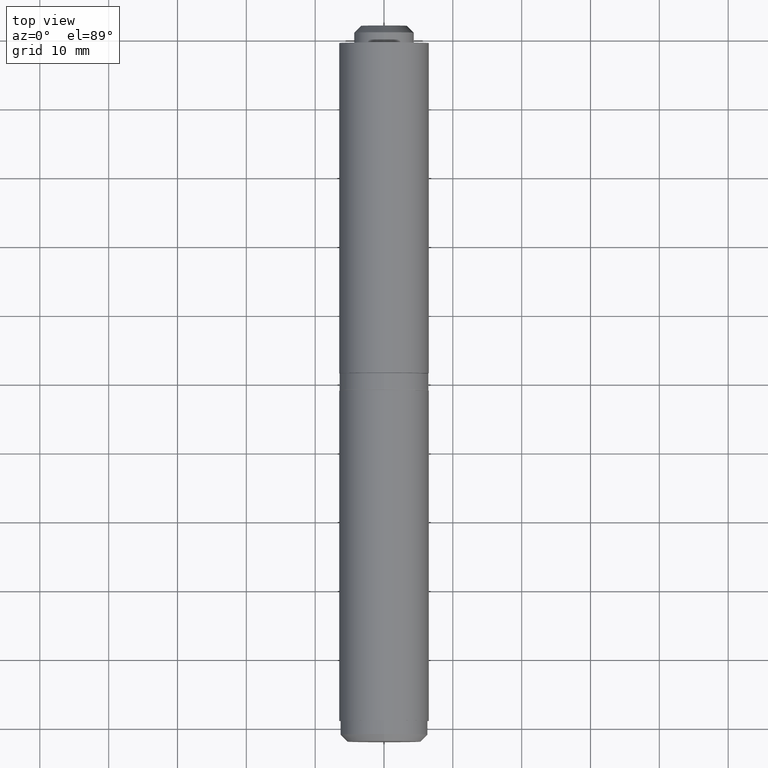
[diagram: clean part render]
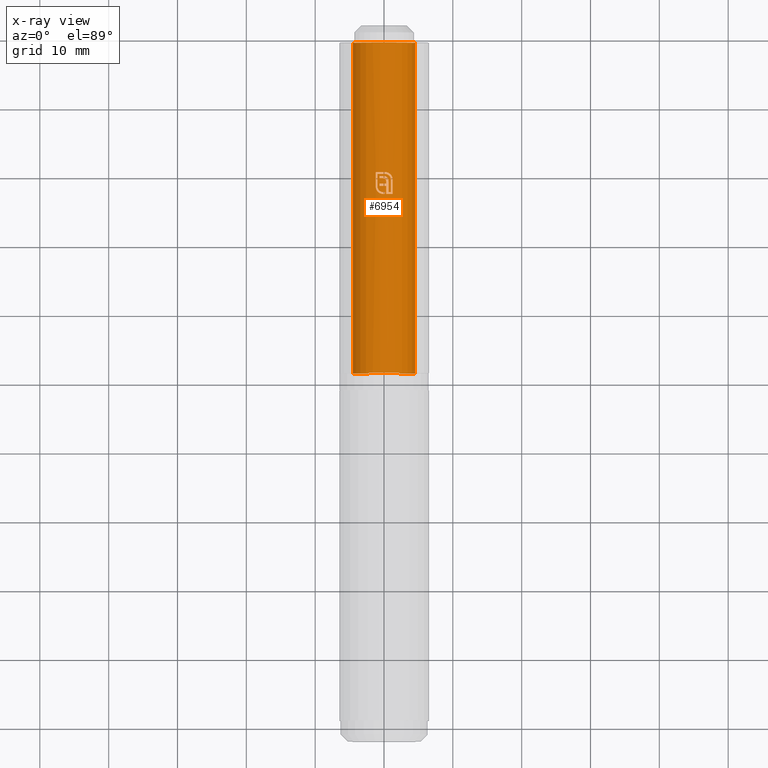
[diagram: x-ray — body ghosted, one internal face saturated and labeled with its STEP entity id]
A machine part, top view, then the same camera in x-ray: the body is ghosted and one INTERNAL B-rep face — a face not visible from any outside direction — is saturated and labeled: STEP entity #6954.
In plain terms, the highlighted cylindrical surface (edge-blend (fillet) strip) has radius 4.5 mm, axis along (-0, -1, -0).
Its self-contained STEP definition (entity closure, byte-faithful):
#5 = CARTESIAN_POINT ( 'NONE',  ( -0.7676687614680792748, 2.209439501032382847, 4.434181471504368588 ) ) ;
#31 = CARTESIAN_POINT ( 'NONE',  ( -0.9480029924582433765, 2.958145984967091469, 4.399022757154508412 ) ) ;
#48 = VERTEX_POINT ( 'NONE', #8719 ) ;
#53 = CARTESIAN_POINT ( 'NONE',  ( 0.000000000000000000, 4.609445667457190865, 0.000000000000000000 ) ) ;
#87 = CARTESIAN_POINT ( 'NONE',  ( -0.8440332804270705980, 2.653375887905594421, 4.420244564810567489 ) ) ;
#122 = EDGE_CURVE ( 'NONE', #5552, #1242, #10960, .T. ) ;
#205 = ORIENTED_EDGE ( 'NONE', *, *, #11868, .F. ) ;
#211 = CARTESIAN_POINT ( 'NONE',  ( 2.274999999999998579, 23.99999999999999289, -3.882573244640724397 ) ) ;
#258 = VECTOR ( 'NONE', #12909, 1000.000000000000000 ) ;
#315 = EDGE_CURVE ( 'NONE', #7555, #2409, #9040, .T. ) ;
#388 = CARTESIAN_POINT ( 'NONE',  ( 1.253355793030608067, 23.99999999999999289, 4.321932352093980079 ) ) ;
#403 = DIRECTION ( 'NONE',  ( 0.000000000000000000, 0.000000000000000000, 1.000000000000000000 ) ) ;
#420 = VECTOR ( 'NONE', #12903, 1000.000000000000000 ) ;
#526 = ORIENTED_EDGE ( 'NONE', *, *, #315, .F. ) ;
#550 = DIRECTION ( 'NONE',  ( 1.546769729245012522E-14, -1.000000000000000000, -0.000000000000000000 ) ) ;
#558 = ORIENTED_EDGE ( 'NONE', *, *, #4746, .F. ) ;
#596 = VERTEX_POINT ( 'NONE', #774 ) ;
#636 = CARTESIAN_POINT ( 'NONE',  ( 0.6305904172171344912, 5.051474659323712757, 4.455800423586352643 ) ) ;
#656 = CARTESIAN_POINT ( 'NONE',  ( 0.3255386204234211878, 3.755468615853324366, 4.488209510106766054 ) ) ;
#704 = CARTESIAN_POINT ( 'NONE',  ( 0.3116960629634016322, 3.907502668029321224, 4.489195601796993174 ) ) ;
#718 = CARTESIAN_POINT ( 'NONE',  ( 0.6310656656755744276, 4.037560485615693473, 4.455572912976717426 ) ) ;
#757 = LINE ( 'NONE', #9889, #258 ) ;
#764 = LINE ( 'NONE', #2005, #5172 ) ;
#768 = EDGE_CURVE ( 'NONE', #1242, #8072, #992, .T. ) ;
#774 = CARTESIAN_POINT ( 'NONE',  ( 1.253355793030608734, 2.000000000000001776, 4.321932352093980967 ) ) ;
#795 = CARTESIAN_POINT ( 'NONE',  ( 0.3201257427930311317, 3.850961675367383208, 4.488599728256452259 ) ) ;
#807 = DIRECTION ( 'NONE',  ( 0.000000000000000000, 1.000000000000000000, 0.000000000000000000 ) ) ;
#836 = EDGE_CURVE ( 'NONE', #10081, #7914, #9406, .T. ) ;
#841 = EDGE_CURVE ( 'NONE', #9863, #5499, #5506, .T. ) ;
#850 = EDGE_CURVE ( 'NONE', #7146, #2755, #10706, .T. ) ;
#855 = CARTESIAN_POINT ( 'NONE',  ( 1.006151909671600286, 4.080365148268018771, 4.386075504897765320 ) ) ;
#866 = ORIENTED_EDGE ( 'NONE', *, *, #2422, .F. ) ;
#916 = CARTESIAN_POINT ( 'NONE',  ( -0.8380926976776720272, 2.264564130130942043, 4.421411684028747402 ) ) ;
#924 = CARTESIAN_POINT ( 'NONE',  ( -1.154465025443730752, 2.750520263700859225, 4.349408601893741455 ) ) ;
#946 = VECTOR ( 'NONE', #9881, 1000.000000000000000 ) ;
#975 = CARTESIAN_POINT ( 'NONE',  ( 0.3255386204234210767, 23.99999999999999289, 4.488209510106765165 ) ) ;
#992 = LINE ( 'NONE', #13045, #1343 ) ;
#1009 = CARTESIAN_POINT ( 'NONE',  ( -0.9327200458989125531, 2.359368556873211009, 4.402389414372885668 ) ) ;
#1081 = VERTEX_POINT ( 'NONE', #2635 ) ;
#1086 = CARTESIAN_POINT ( 'NONE',  ( 0.01921422108199707240, 4.587329256537598710, 4.500083828489570337 ) ) ;
#1099 = CARTESIAN_POINT ( 'NONE',  ( 0.008756587164761854905, 4.259605371250122730, 4.500028330865335491 ) ) ;
#1147 = DIRECTION ( 'NONE',  ( 0.000000000000000000, 1.000000000000000000, 0.000000000000000000 ) ) ;
#1172 = CARTESIAN_POINT ( 'NONE',  ( -0.6279620725327546005, 4.288401663094826510, 4.455969438344517641 ) ) ;
#1189 = CARTESIAN_POINT ( 'NONE',  ( -0.4282727018193733803, 2.043661984593277303, 4.479573918675338717 ) ) ;
#1195 = CARTESIAN_POINT ( 'NONE',  ( 0.1868476105388863495, 4.149710653210285649, 4.496119212213562477 ) ) ;
#1207 = CARTESIAN_POINT ( 'NONE',  ( 0.1829950824865379799, 5.146873330759742515, 4.496277660441549529 ) ) ;
#1242 = VERTEX_POINT ( 'NONE', #8190 ) ;
#1273 = CARTESIAN_POINT ( 'NONE',  ( -0.3797257206509644378, 2.029863875049589428, 4.484215285726678601 ) ) ;
#1343 = VECTOR ( 'NONE', #7877, 1000.000000000000000 ) ;
#1353 = AXIS2_PLACEMENT_3D ( 'NONE', #10247, #5906, #3641 ) ;
#1398 = CARTESIAN_POINT ( 'NONE',  ( 0.2908658679522872492, 3.980841506915688832, 4.490589832846055174 ) ) ;
#1466 = CARTESIAN_POINT ( 'NONE',  ( -0.1984051946959321522, 4.288401663094819405, 4.495624025507211741 ) ) ;
#1474 = LINE ( 'NONE', #388, #3158 ) ;
#1498 = EDGE_CURVE ( 'NONE', #11568, #8072, #11773, .T. ) ;
#1662 = CARTESIAN_POINT ( 'NONE',  ( 0.3216860923710728737, 2.247203883359007115, 4.488487279471228497 ) ) ;
#1771 = ORIENTED_EDGE ( 'NONE', *, *, #2205, .F. ) ;
#1775 = CARTESIAN_POINT ( 'NONE',  ( -2.274999999999999023, -24.00000000000000000, -3.882573244640724397 ) ) ;
#1800 = CIRCLE ( 'NONE', #5297, 4.500000000000000000 ) ;
#1808 = CARTESIAN_POINT ( 'NONE',  ( -0.3432038137734825800, 2.270870091671090663, 4.487208185411386552 ) ) ;
#1816 = CARTESIAN_POINT ( 'NONE',  ( 0.5132577123878178105, 4.301117604165036745, 4.470728646581288324 ) ) ;
#1895 = CARTESIAN_POINT ( 'NONE',  ( 1.004767296783291908, 4.134389496864537605, 4.386393130734386858 ) ) ;
#1930 = DIRECTION ( 'NONE',  ( 0.000000000000000000, 0.000000000000000000, 1.000000000000000000 ) ) ;
#1938 = CIRCLE ( 'NONE', #12093, 4.500000000000000000 ) ;
#2005 = CARTESIAN_POINT ( 'NONE',  ( -0.6279620725326500175, 24.00000000000000711, 4.455969438344531852 ) ) ;
#2052 = CARTESIAN_POINT ( 'NONE',  ( -1.061371478421925474, 2.541922279363645565, 4.373041342680452637 ) ) ;
#2076 = CARTESIAN_POINT ( 'NONE',  ( -0.1172518018259316452, 4.605904330165980554, 4.498990910224363482 ) ) ;
#2087 = VERTEX_POINT ( 'NONE', #13811 ) ;
#2091 = CARTESIAN_POINT ( 'NONE',  ( -0.9617301877104678098, 2.393275440488541239, 4.396112353924896965 ) ) ;
#2118 = CARTESIAN_POINT ( 'NONE',  ( 0.6848356066615164384, 4.730622471763144432, 4.447812430624699331 ) ) ;
#2120 = EDGE_CURVE ( 'NONE', #2855, #13465, #12956, .T. ) ;
#2141 = CARTESIAN_POINT ( 'NONE',  ( 0.3216860923710727072, 23.99999999999999289, 4.488487279471227609 ) ) ;
#2145 = CARTESIAN_POINT ( 'NONE',  ( 0.7634426423736646594, 4.656960180102795555, 4.434766660356045165 ) ) ;
#2155 = LINE ( 'NONE', #4251, #13436 ) ;
#2162 = EDGE_CURVE ( 'NONE', #10380, #2087, #2500, .T. ) ;
#2163 = CARTESIAN_POINT ( 'NONE',  ( 0.000000000000000000, 4.288401663094805194, 0.000000000000000000 ) ) ;
#2170 = CARTESIAN_POINT ( 'NONE',  ( 0.6684136170823562484, 23.99999999999999289, 4.450081261785999054 ) ) ;
#2178 = DIRECTION ( 'NONE',  ( 0.000000000000000000, 0.000000000000000000, -1.000000000000000000 ) ) ;
#2197 = ORIENTED_EDGE ( 'NONE', *, *, #2361, .F. ) ;
#2205 = EDGE_CURVE ( 'NONE', #8571, #7451, #11601, .T. ) ;
#2224 = CARTESIAN_POINT ( 'NONE',  ( -0.06557446798067144422, 4.278026249048912710, 4.499562136684323477 ) ) ;
#2229 = EDGE_LOOP ( 'NONE', ( #10838, #13818, #13172, #12845 ) ) ;
#2243 = ORIENTED_EDGE ( 'NONE', *, *, #9416, .F. ) ;
#2244 = CARTESIAN_POINT ( 'NONE',  ( 0.3255386204234211878, 3.755468615853324366, 4.488209510106766054 ) ) ;
#2250 = ORIENTED_EDGE ( 'NONE', *, *, #841, .F. ) ;
#2263 = ORIENTED_EDGE ( 'NONE', *, *, #5079, .F. ) ;
#2281 = DIRECTION ( 'NONE',  ( -0.000000000000000000, -1.000000000000000000, -0.000000000000000000 ) ) ;
#2284 = LINE ( 'NONE', #6212, #420 ) ;
#2301 = CARTESIAN_POINT ( 'NONE',  ( -0.4282727018193733803, 2.043661984593277303, 4.479573918675338717 ) ) ;
#2328 = CARTESIAN_POINT ( 'NONE',  ( -0.1290596897536646637, 2.000000000000001776, 4.498148907770914917 ) ) ;
#2332 = VECTOR ( 'NONE', #11881, 1000.000000000000000 ) ;
#2334 = ORIENTED_EDGE ( 'NONE', *, *, #10687, .F. ) ;
#2361 = EDGE_CURVE ( 'NONE', #5825, #3746, #2155, .T. ) ;
#2369 = DIRECTION ( 'NONE',  ( 1.000000000000000000, 3.681468710128557348E-14, 2.398081733190338127E-14 ) ) ;
#2376 = CARTESIAN_POINT ( 'NONE',  ( -0.04667139073047157916, 4.274639003351478728, 4.499796422943714624 ) ) ;
#2384 = CARTESIAN_POINT ( 'NONE',  ( 1.092833790849434550, 4.639623803867232610, 4.365285134510418885 ) ) ;
#2395 = EDGE_CURVE ( 'NONE', #12510, #13319, #6929, .T. ) ;
#2409 = VERTEX_POINT ( 'NONE', #11971 ) ;
#2422 = EDGE_CURVE ( 'NONE', #7451, #5267, #10584, .T. ) ;
#2425 = CIRCLE ( 'NONE', #9933, 4.500000000000000000 ) ;
#2438 = FACE_BOUND ( 'NONE', #13018, .T. ) ;
#2463 = CARTESIAN_POINT ( 'NONE',  ( 0.2572232564420123269, 4.513241621450033492, 4.492904352146033453 ) ) ;
#2500 = CIRCLE ( 'NONE', #8205, 4.500000000000000000 ) ;
#2514 = B_SPLINE_CURVE_WITH_KNOTS ( 'NONE', 3,
 ( #4297, #8882, #3188, #6672, #11970, #4379, #10991, #8679, #5559, #6627, #5464, #9949, #3336 ),
 .UNSPECIFIED., .F., .F.,
 ( 4, 3, 3, 3, 4 ),
 ( 0.000000000000000000, 7.485420885651228361E-05, 0.0001498035769466081663, 0.0002243807362915702650, 0.0002993900755846142696 ),
 .UNSPECIFIED. ) ;
#2539 = CARTESIAN_POINT ( 'NONE',  ( 0.000000000000000000, 2.000000000000022649, 0.000000000000000000 ) ) ;
#2543 = VERTEX_POINT ( 'NONE', #1207 ) ;
#2557 = EDGE_CURVE ( 'NONE', #7286, #6962, #11960, .T. ) ;
#2582 = ORIENTED_EDGE ( 'NONE', *, *, #3115, .F. ) ;
#2586 = EDGE_CURVE ( 'NONE', #6432, #10380, #14106, .T. ) ;
#2635 = CARTESIAN_POINT ( 'NONE',  ( -0.6279620725327548225, 4.609445667457169549, 4.455969438344532740 ) ) ;
#2686 = AXIS2_PLACEMENT_3D ( 'NONE', #2163, #12979, #7615 ) ;
#2722 = ORIENTED_EDGE ( 'NONE', *, *, #5046, .F. ) ;
#2755 = VERTEX_POINT ( 'NONE', #11073 ) ;
#2831 = VECTOR ( 'NONE', #9368, 1000.000000000000000 ) ;
#2848 = CARTESIAN_POINT ( 'NONE',  ( -0.1831947908793095936, 2.248689988033408582, 4.496595677875841801 ) ) ;
#2855 = VERTEX_POINT ( 'NONE', #9242 ) ;
#2859 = CARTESIAN_POINT ( 'NONE',  ( 0.7114335136669640569, 5.008182320875207871, 4.443406616058390490 ) ) ;
#2870 = CARTESIAN_POINT ( 'NONE',  ( 0.3253410152290591717, 3.774597260251678854, 4.488223842798280572 ) ) ;
#2973 = LINE ( 'NONE', #2170, #946 ) ;
#2982 = CARTESIAN_POINT ( 'NONE',  ( 0.7634426423736646594, 4.656960180102795555, 4.434766660356045165 ) ) ;
#3011 = DIRECTION ( 'NONE',  ( 0.000000000000000000, -1.000000000000000000, -0.000000000000000000 ) ) ;
#3051 = CARTESIAN_POINT ( 'NONE',  ( -1.197290163826928877, 2.974848710803206675, 4.337801932246638792 ) ) ;
#3092 = AXIS2_PLACEMENT_3D ( 'NONE', #2539, #13429, #6968 ) ;
#3095 = ORIENTED_EDGE ( 'NONE', *, *, #10018, .F. ) ;
#3100 = CARTESIAN_POINT ( 'NONE',  ( -1.177700010895813554, 2.839431931887263172, 4.343174802553550151 ) ) ;
#3115 = EDGE_CURVE ( 'NONE', #9455, #9450, #3222, .T. ) ;
#3120 = CARTESIAN_POINT ( 'NONE',  ( 0.7634426423736646594, 4.656960180102795555, 4.434766660356045165 ) ) ;
#3145 = CARTESIAN_POINT ( 'NONE',  ( -1.140575606751490945, 2.706870968456518423, 4.353094183687113983 ) ) ;
#3158 = VECTOR ( 'NONE', #9207, 1000.000000000000000 ) ;
#3165 = CARTESIAN_POINT ( 'NONE',  ( 0.5489883476184528321, 4.818180161065377831, 4.466661610300540097 ) ) ;
#3188 = CARTESIAN_POINT ( 'NONE',  ( 1.223420605011807272, 4.327234442083224941, 4.330505247519436551 ) ) ;
#3210 = CARTESIAN_POINT ( 'NONE',  ( 0.9571029960879618992, 4.816941855496957636, 4.397161727897488603 ) ) ;
#3222 = B_SPLINE_CURVE_WITH_KNOTS ( 'NONE', 3,
 ( #9729, #4200, #5282, #3390, #1273, #2301 ),
 .UNSPECIFIED., .F., .F.,
 ( 4, 2, 4 ),
 ( 2.710505431213764696E-20, 0.0001521874723932654537, 0.0003043749447865308532 ),
 .UNSPECIFIED. ) ;
#3223 = VERTEX_POINT ( 'NONE', #7002 ) ;
#3236 = VERTEX_POINT ( 'NONE', #5893 ) ;
#3275 = CARTESIAN_POINT ( 'NONE',  ( -1.061371478421925474, 2.541922279363645565, 4.373041342680452637 ) ) ;
#3336 = CARTESIAN_POINT ( 'NONE',  ( 1.253355793030608734, 4.080365148268018771, 4.321932352093980967 ) ) ;
#3351 = LINE ( 'NONE', #11094, #7437 ) ;
#3390 = CARTESIAN_POINT ( 'NONE',  ( -0.3306907673371394796, 2.017991626808814498, 4.488113819902606494 ) ) ;
#3419 = ORIENTED_EDGE ( 'NONE', *, *, #2120, .F. ) ;
#3420 = B_SPLINE_CURVE_WITH_KNOTS ( 'NONE', 3,
 ( #10052, #11007, #31, #4393, #6690, #7812, #87, #7705, #8951, #11145 ),
 .UNSPECIFIED., .F., .F.,
 ( 4, 2, 2, 2, 4 ),
 ( 4.336808689942166996E-19, 0.0001625132019157780232, 0.0003250264038315556128, 0.0004875396057473332023, 0.0006500528076631107918 ),
 .UNSPECIFIED. ) ;
#3428 = CARTESIAN_POINT ( 'NONE',  ( 2.274999999999998579, -24.00000000000000000, -3.882573244640724397 ) ) ;
#3472 = VERTEX_POINT ( 'NONE', #5068 ) ;
#3486 = DIRECTION ( 'NONE',  ( 0.000000000000000000, 1.000000000000000000, 0.000000000000000000 ) ) ;
#3515 = B_SPLINE_CURVE_WITH_KNOTS ( 'NONE', 3,
 ( #6559, #1099, #12249, #8821, #2376, #2224, #8761, #9937, #5549, #4467 ),
 .UNSPECIFIED., .F., .F.,
 ( 4, 3, 3, 4 ),
 ( 0.000000000000000000, 5.740821187204795837E-05, 0.0001149024722405065925, 0.0002293725351324100764 ),
 .UNSPECIFIED. ) ;
#3527 = CARTESIAN_POINT ( 'NONE',  ( 0.4132276602549038724, 5.124500268190222307, 4.481212597768475803 ) ) ;
#3551 = CARTESIAN_POINT ( 'NONE',  ( 0.4385461099589678668, 4.384072776394798865, 4.478579831759154750 ) ) ;
#3616 = CARTESIAN_POINT ( 'NONE',  ( 0.2098494917111835001, 4.125546971689824538, 4.495163310839045856 ) ) ;
#3624 = ORIENTED_EDGE ( 'NONE', *, *, #8837, .F. ) ;
#3629 = CARTESIAN_POINT ( 'NONE',  ( 0.000000000000000000, -24.00000000000000000, 0.000000000000000000 ) ) ;
#3641 = DIRECTION ( 'NONE',  ( 7.105427357601001859E-15, 0.000000000000000000, -1.000000000000000000 ) ) ;
#3648 = CARTESIAN_POINT ( 'NONE',  ( 0.2051382027816461284, 4.534405695958179550, 4.495634176080965716 ) ) ;
#3664 = LINE ( 'NONE', #211, #13245 ) ;
#3746 = VERTEX_POINT ( 'NONE', #12884 ) ;
#3801 = CIRCLE ( 'NONE', #12592, 4.500000000000000000 ) ;
#3860 = LINE ( 'NONE', #12680, #2831 ) ;
#3906 = CARTESIAN_POINT ( 'NONE',  ( 0.4773655694681908646, 4.344023402496453024, 4.474778599315388128 ) ) ;
#4010 = DIRECTION ( 'NONE',  ( -1.000000000000000000, -1.541976423090495160E-14, -5.329070518200749816E-15 ) ) ;
#4021 = CARTESIAN_POINT ( 'NONE',  ( 0.2908658679522872492, 3.980841506915688832, 4.490589832846055174 ) ) ;
#4066 = CARTESIAN_POINT ( 'NONE',  ( 0.3238685927166647938, 3.812833195676379461, 4.488330328156752813 ) ) ;
#4080 = ORIENTED_EDGE ( 'NONE', *, *, #7884, .F. ) ;
#4088 = CARTESIAN_POINT ( 'NONE',  ( -1.198679167774359788, 3.020678023088193331, 4.337415164914441235 ) ) ;
#4120 = VERTEX_POINT ( 'NONE', #7820 ) ;
#4160 = CARTESIAN_POINT ( 'NONE',  ( 0.2915277810603660869, 4.894852510010306190, 4.490864400373939525 ) ) ;
#4200 = CARTESIAN_POINT ( 'NONE',  ( -0.1797696817940542813, 2.000834830801292874, 4.496693950192960365 ) ) ;
#4241 = CARTESIAN_POINT ( 'NONE',  ( -1.200062488306460340, 3.066508182491718859, 4.337032398329496274 ) ) ;
#4251 = CARTESIAN_POINT ( 'NONE',  ( -1.200062488306459896, 23.99999999999999289, 4.337032398329495386 ) ) ;
#4271 = CARTESIAN_POINT ( 'NONE',  ( 1.195964771809202354, 4.421669129376579299, 4.338187574659050583 ) ) ;
#4285 = CARTESIAN_POINT ( 'NONE',  ( -1.014404538876975570, 2.465687369792450845, 4.384257316101612290 ) ) ;
#4297 = CARTESIAN_POINT ( 'NONE',  ( 1.209693808437329210, 4.375083544272656333, 4.334355879462182592 ) ) ;
#4299 = ORIENTED_EDGE ( 'NONE', *, *, #10528, .F. ) ;
#4318 = CARTESIAN_POINT ( 'NONE',  ( 0.4505225510019807977, 4.859727596995678134, 4.477664969355360292 ) ) ;
#4379 = CARTESIAN_POINT ( 'NONE',  ( 1.238891985862425660, 4.254064126797340251, 4.326102282330223758 ) ) ;
#4388 = EDGE_CURVE ( 'NONE', #2543, #2855, #13826, .T. ) ;
#4393 = CARTESIAN_POINT ( 'NONE',  ( -0.9274042958727106711, 2.851325851457635174, 4.403411423393214896 ) ) ;
#4394 = EDGE_CURVE ( 'NONE', #14118, #3223, #3860, .T. ) ;
#4405 = CARTESIAN_POINT ( 'NONE',  ( 1.092833790849434550, 4.639623803867232610, 4.365285134510418885 ) ) ;
#4448 = ORIENTED_EDGE ( 'NONE', *, *, #2395, .F. ) ;
#4467 = CARTESIAN_POINT ( 'NONE',  ( -0.1984051946959321522, 4.288401663094819405, 4.495624025507211741 ) ) ;
#4527 = DIRECTION ( 'NONE',  ( -0.000000000000000000, -1.000000000000000000, -0.000000000000000000 ) ) ;
#4575 = EDGE_CURVE ( 'NONE', #3746, #2543, #1800, .T. ) ;
#4585 = CARTESIAN_POINT ( 'NONE',  ( -0.6515467889687115433, 2.135370303425541572, 4.452777899566520148 ) ) ;
#4694 = CARTESIAN_POINT ( 'NONE',  ( 0.1868476105388863495, 4.149710653210285649, 4.496119212213562477 ) ) ;
#4729 = CARTESIAN_POINT ( 'NONE',  ( 0.3540213200035531860, 4.456681711822390035, 4.486314994087052810 ) ) ;
#4746 = EDGE_CURVE ( 'NONE', #3236, #596, #1474, .T. ) ;
#4926 = CARTESIAN_POINT ( 'NONE',  ( -0.4942704737478704757, 2.326839151742363221, 4.473048484920414403 ) ) ;
#5046 = EDGE_CURVE ( 'NONE', #13465, #9022, #13585, .T. ) ;
#5055 = CARTESIAN_POINT ( 'NONE',  ( 0.3026826819355654674, 3.944711817155348577, 4.489824430530637400 ) ) ;
#5060 = B_SPLINE_CURVE_WITH_KNOTS ( 'NONE', 3,
 ( #2052, #13886, #9761, #3145, #924, #3100, #11829, #3051, #4088, #5183 ),
 .UNSPECIFIED., .F., .F.,
 ( 4, 2, 2, 2, 4 ),
 ( 0.000000000000000000, 0.0001380313922913706595, 0.0002760627845827413190, 0.0004140941768741119786, 0.0005521255691654826381 ),
 .UNSPECIFIED. ) ;
#5068 = CARTESIAN_POINT ( 'NONE',  ( 1.006151909671600286, 4.080365148268018771, 4.386075504897765320 ) ) ;
#5079 = EDGE_CURVE ( 'NONE', #6125, #7864, #2973, .T. ) ;
#5139 = AXIS2_PLACEMENT_3D ( 'NONE', #7421, #8555, #11856 ) ;
#5172 = VECTOR ( 'NONE', #6379, 1000.000000000000000 ) ;
#5183 = CARTESIAN_POINT ( 'NONE',  ( -1.200062488306460340, 3.066508182491718859, 4.337032398329496274 ) ) ;
#5225 = CARTESIAN_POINT ( 'NONE',  ( -0.8707808956538588552, 2.294914004465761881, 4.415058308965849498 ) ) ;
#5267 = VERTEX_POINT ( 'NONE', #2244 ) ;
#5282 = CARTESIAN_POINT ( 'NONE',  ( -0.2304462672031439563, 2.003458778211022917, 4.494376103747318218 ) ) ;
#5297 = AXIS2_PLACEMENT_3D ( 'NONE', #13138, #8632, #6422 ) ;
#5352 = CARTESIAN_POINT ( 'NONE',  ( 0.08625138762525033642, 4.572649476639226940, 4.499298206149249246 ) ) ;
#5372 = ORIENTED_EDGE ( 'NONE', *, *, #11754, .F. ) ;
#5394 = CARTESIAN_POINT ( 'NONE',  ( 0.2374244021070018307, 4.898341542803921200, 4.494062428512873630 ) ) ;
#5402 = ORIENTED_EDGE ( 'NONE', *, *, #10664, .F. ) ;
#5405 = ORIENTED_EDGE ( 'NONE', *, *, #836, .F. ) ;
#5408 = EDGE_CURVE ( 'NONE', #5552, #11568, #3664, .T. ) ;
#5455 = VERTEX_POINT ( 'NONE', #11095 ) ;
#5464 = CARTESIAN_POINT ( 'NONE',  ( 1.252502541033962080, 4.130387284028055106, 4.322180066990496172 ) ) ;
#5496 = CARTESIAN_POINT ( 'NONE',  ( 1.209693808437329210, 4.375083544272656333, 4.334355879462182592 ) ) ;
#5499 = VERTEX_POINT ( 'NONE', #13388 ) ;
#5506 = B_SPLINE_CURVE_WITH_KNOTS ( 'NONE', 3,
 ( #11946, #8806, #2076, #14001, #1086, #5352, #8703, #9786 ),
 .UNSPECIFIED., .F., .F.,
 ( 4, 2, 2, 4 ),
 ( 1.084202172485503832E-19, 0.0002066500901444883723, 0.0003099751352167327075, 0.0004133001802889770156 ),
 .UNSPECIFIED. ) ;
#5549 = CARTESIAN_POINT ( 'NONE',  ( -0.1603841129124185250, 4.287855708152656931, 4.497302008383671001 ) ) ;
#5552 = VERTEX_POINT ( 'NONE', #5768 ) ;
#5559 = CARTESIAN_POINT ( 'NONE',  ( 1.249104954057953520, 4.180114805370126696, 4.323163184761756206 ) ) ;
#5679 = VECTOR ( 'NONE', #807, 1000.000000000000000 ) ;
#5760 = VERTEX_POINT ( 'NONE', #10659 ) ;
#5768 = CARTESIAN_POINT ( 'NONE',  ( 2.274999999999998579, 23.99999999999999289, -3.882573244640724397 ) ) ;
#5825 = VERTEX_POINT ( 'NONE', #4241 ) ;
#5833 = EDGE_CURVE ( 'NONE', #7914, #1081, #764, .T. ) ;
#5888 = VECTOR ( 'NONE', #10942, 1000.000000000000000 ) ;
#5893 = CARTESIAN_POINT ( 'NONE',  ( 1.253355793030608734, 4.080365148268018771, 4.321932352093980967 ) ) ;
#5897 = CARTESIAN_POINT ( 'NONE',  ( 0.5027259825121126458, 5.101158090345796481, 4.472056577471470895 ) ) ;
#5903 = ORIENTED_EDGE ( 'NONE', *, *, #13292, .F. ) ;
#5906 = DIRECTION ( 'NONE',  ( 0.000000000000000000, 1.000000000000000000, 0.000000000000000000 ) ) ;
#5917 = EDGE_CURVE ( 'NONE', #9022, #3236, #2514, .T. ) ;
#6080 = CARTESIAN_POINT ( 'NONE',  ( 0.5927138017329751651, 4.154477789261132870, 4.460836892365461992 ) ) ;
#6125 = VERTEX_POINT ( 'NONE', #8905 ) ;
#6212 = CARTESIAN_POINT ( 'NONE',  ( 1.006151909671600064, 23.99999999999999289, 4.386075504897764432 ) ) ;
#6254 = B_SPLINE_CURVE_WITH_KNOTS ( 'NONE', 3,
 ( #1189, #11161, #9976, #6793, #4585, #12289 ),
 .UNSPECIFIED., .F., .F.,
 ( 4, 2, 4 ),
 ( 0.000000000000000000, 0.0001458693049015775598, 0.0002917386098031551195 ),
 .UNSPECIFIED. ) ;
#6294 = CARTESIAN_POINT ( 'NONE',  ( 0.1001657293610521693, 2.000000000000001776, 4.498885064842350623 ) ) ;
#6299 = ORIENTED_EDGE ( 'NONE', *, *, #12562, .F. ) ;
#6323 = CARTESIAN_POINT ( 'NONE',  ( -1.037891968518705799, 2.503816075615911352, 4.378740004134984432 ) ) ;
#6379 = DIRECTION ( 'NONE',  ( 0.000000000000000000, 1.000000000000000000, 0.000000000000000000 ) ) ;
#6404 = CARTESIAN_POINT ( 'NONE',  ( 0.7114335136669640569, 5.008182320875207871, 4.443406616058390490 ) ) ;
#6416 = CARTESIAN_POINT ( 'NONE',  ( 0.02696769636643687323, 4.253728910623685522, 4.499919192980323501 ) ) ;
#6422 = DIRECTION ( 'NONE',  ( 4.440892098500625373E-15, 0.000000000000000000, -1.000000000000000000 ) ) ;
#6432 = VERTEX_POINT ( 'NONE', #11373 ) ;
#6450 = CARTESIAN_POINT ( 'NONE',  ( 1.117942078401213291, 4.598428855804947091, 4.358999362969399272 ) ) ;
#6559 = CARTESIAN_POINT ( 'NONE',  ( 0.02696769636643687323, 4.253728910623685522, 4.499919192980323501 ) ) ;
#6610 = DIRECTION ( 'NONE',  ( 0.000000000000000000, 0.000000000000000000, -1.000000000000000000 ) ) ;
#6627 = CARTESIAN_POINT ( 'NONE',  ( 1.250798525608093126, 4.155327473655420434, 4.322673136883777190 ) ) ;
#6630 = DIRECTION ( 'NONE',  ( -0.000000000000000000, -1.000000000000000000, -0.000000000000000000 ) ) ;
#6672 = CARTESIAN_POINT ( 'NONE',  ( 1.229003050627402116, 4.302967243058806623, 4.328920362116700282 ) ) ;
#6690 = CARTESIAN_POINT ( 'NONE',  ( -0.9126679167526754455, 2.799623275124957011, 4.406528078898767298 ) ) ;
#6793 = CARTESIAN_POINT ( 'NONE',  ( -0.6094081713956741586, 2.111458779553754717, 4.458768597478597329 ) ) ;
#6833 = CARTESIAN_POINT ( 'NONE',  ( 0.2757509956796552197, 5.144118814644372151, 4.491781016442002006 ) ) ;
#6863 = EDGE_CURVE ( 'NONE', #13319, #9446, #1938, .T. ) ;
#6881 = EDGE_CURVE ( 'NONE', #5455, #10081, #3515, .T. ) ;
#6889 = CARTESIAN_POINT ( 'NONE',  ( 0.1521748580677528551, 4.552941922689394794, 4.497426243149748259 ) ) ;
#6929 = LINE ( 'NONE', #2141, #5888 ) ;
#6954 = ADVANCED_FACE ( 'NONE', ( #10187, #2438 ), #7389, .F. ) ;
#6962 = VERTEX_POINT ( 'NONE', #1195 ) ;
#6968 = DIRECTION ( 'NONE',  ( -1.000000000000000000, 2.505711687522054832E-14, 1.421085471520200056E-14 ) ) ;
#7002 = CARTESIAN_POINT ( 'NONE',  ( -0.9528586049474515596, 3.066508182491718859, 4.397960945594872939 ) ) ;
#7062 = CARTESIAN_POINT ( 'NONE',  ( 0.000000000000000000, 3.144200831547414143, 0.000000000000000000 ) ) ;
#7079 = B_SPLINE_CURVE_WITH_KNOTS ( 'NONE', 3,
 ( #11628, #718, #14055, #8710, #12902, #12947 ),
 .UNSPECIFIED., .F., .F.,
 ( 4, 2, 4 ),
 ( 0.000000000000000000, 0.0002023498150831934276, 0.0004046996301663868551 ),
 .UNSPECIFIED. ) ;
#7086 = CARTESIAN_POINT ( 'NONE',  ( -0.5412381131606200935, 2.352318468545793184, 4.467560835110379713 ) ) ;
#7127 = ORIENTED_EDGE ( 'NONE', *, *, #8955, .F. ) ;
#7128 = EDGE_CURVE ( 'NONE', #11152, #9455, #9328, .T. ) ;
#7137 = CARTESIAN_POINT ( 'NONE',  ( -0.1290596897536647192, 2.247203883359007115, 4.498148907770915805 ) ) ;
#7146 = VERTEX_POINT ( 'NONE', #2145 ) ;
#7175 = B_SPLINE_CURVE_WITH_KNOTS ( 'NONE', 3,
 ( #7484, #12011, #9849, #11959, #9799, #6416 ),
 .UNSPECIFIED., .F., .F.,
 ( 4, 2, 4 ),
 ( 0.000000000000000000, 9.649040370048031826E-05, 0.0001929808074009605823 ),
 .UNSPECIFIED. ) ;
#7224 = ORIENTED_EDGE ( 'NONE', *, *, #6881, .F. ) ;
#7286 = VERTEX_POINT ( 'NONE', #8168 ) ;
#7315 = ORIENTED_EDGE ( 'NONE', *, *, #4575, .F. ) ;
#7326 = CARTESIAN_POINT ( 'NONE',  ( 0.8367139062617221512, 4.579034974450542528, 4.421636314064111062 ) ) ;
#7374 = B_SPLINE_CURVE_WITH_KNOTS ( 'NONE', 3,
 ( #656, #2870, #8397, #4066, #13902, #795, #13761, #704, #5055, #4021 ),
 .UNSPECIFIED., .F., .F.,
 ( 4, 3, 3, 4 ),
 ( 0.000000000000000000, 5.738901121136754356E-05, 0.0001148590242272388192, 0.0002293310276148696368 ),
 .UNSPECIFIED. ) ;
#7389 = CYLINDRICAL_SURFACE ( 'NONE', #10367, 4.500000000000000000 ) ;
#7421 = CARTESIAN_POINT ( 'NONE',  ( 0.000000000000000000, 23.99999999999999289, 0.000000000000000000 ) ) ;
#7428 = CARTESIAN_POINT ( 'NONE',  ( 0.9655540074512349857, 4.345675402087597838, 4.395242848811386160 ) ) ;
#7437 = VECTOR ( 'NONE', #13455, 1000.000000000000000 ) ;
#7440 = AXIS2_PLACEMENT_3D ( 'NONE', #13895, #11703, #12778 ) ;
#7451 = VERTEX_POINT ( 'NONE', #9820 ) ;
#7484 = CARTESIAN_POINT ( 'NONE',  ( 0.1868476105388863495, 4.149710653210285649, 4.496119212213562477 ) ) ;
#7555 = VERTEX_POINT ( 'NONE', #13140 ) ;
#7571 = CARTESIAN_POINT ( 'NONE',  ( 1.042766457437881211, 4.713783248238058832, 4.377607417700766668 ) ) ;
#7615 = DIRECTION ( 'NONE',  ( -1.000000000000000000, 3.238150488490040120E-14, -2.220446049250312450E-14 ) ) ;
#7622 = DIRECTION ( 'NONE',  ( 1.000000000000000000, -2.977941967093519056E-14, 0.000000000000000000 ) ) ;
#7673 = DIRECTION ( 'NONE',  ( -3.684124264201749066E-14, 1.000000000000000000, -0.000000000000000000 ) ) ;
#7678 = CARTESIAN_POINT ( 'NONE',  ( 0.000000000000000000, 2.247203883359007115, 0.000000000000000000 ) ) ;
#7692 = DIRECTION ( 'NONE',  ( 0.000000000000000000, 0.000000000000000000, 1.000000000000000000 ) ) ;
#7705 = CARTESIAN_POINT ( 'NONE',  ( -0.7832715828613362463, 2.564552923948019370, 4.431415103405202949 ) ) ;
#7725 = CARTESIAN_POINT ( 'NONE',  ( 0.9873608284909802801, 4.783970660282277798, 4.390435876154888284 ) ) ;
#7812 = CARTESIAN_POINT ( 'NONE',  ( -0.8709706054157775323, 2.700900232802912804, 4.414958962537999909 ) ) ;
#7820 = CARTESIAN_POINT ( 'NONE',  ( 1.006151909671600064, 2.247203883359007115, 4.386075504897764432 ) ) ;
#7864 = VERTEX_POINT ( 'NONE', #13068 ) ;
#7877 = DIRECTION ( 'NONE',  ( -0.000000000000000000, -1.000000000000000000, -0.000000000000000000 ) ) ;
#7884 = EDGE_CURVE ( 'NONE', #3223, #6432, #3420, .T. ) ;
#7914 = VERTEX_POINT ( 'NONE', #1172 ) ;
#7918 = CIRCLE ( 'NONE', #7440, 4.500000000000000000 ) ;
#8072 = VERTEX_POINT ( 'NONE', #1775 ) ;
#8168 = CARTESIAN_POINT ( 'NONE',  ( 0.2908658679522872492, 3.980841506915688832, 4.490589832846055174 ) ) ;
#8190 = CARTESIAN_POINT ( 'NONE',  ( -2.274999999999999023, 23.99999999999999289, -3.882573244640724397 ) ) ;
#8205 = AXIS2_PLACEMENT_3D ( 'NONE', #8707, #13079, #7622 ) ;
#8239 = VERTEX_POINT ( 'NONE', #10587 ) ;
#8254 = ORIENTED_EDGE ( 'NONE', *, *, #10483, .F. ) ;
#8304 = CARTESIAN_POINT ( 'NONE',  ( -0.9528586049474511155, 4.899669447400737177, 4.397960945594854287 ) ) ;
#8319 = CARTESIAN_POINT ( 'NONE',  ( -0.6712696622152405368, 2.448142640681273630, 4.449825533356587925 ) ) ;
#8347 = VERTEX_POINT ( 'NONE', #8553 ) ;
#8397 = CARTESIAN_POINT ( 'NONE',  ( 0.3251442215094684229, 3.793746326149367132, 4.488238281432971988 ) ) ;
#8446 = CARTESIAN_POINT ( 'NONE',  ( 0.000000000000000000, 4.899669447400737177, 0.000000000000000000 ) ) ;
#8553 = CARTESIAN_POINT ( 'NONE',  ( -0.6928129614139491022, 2.160522002181176848, 4.446347962147905619 ) ) ;
#8555 = DIRECTION ( 'NONE',  ( -0.000000000000000000, -1.000000000000000000, -0.000000000000000000 ) ) ;
#8571 = VERTEX_POINT ( 'NONE', #10673 ) ;
#8604 = ORIENTED_EDGE ( 'NONE', *, *, #850, .F. ) ;
#8617 = ORIENTED_EDGE ( 'NONE', *, *, #12252, .F. ) ;
#8626 = CARTESIAN_POINT ( 'NONE',  ( -0.7302655699458854288, 2.185000415302651433, 4.440512239696452035 ) ) ;
#8628 = CIRCLE ( 'NONE', #9011, 4.500000000000000000 ) ;
#8632 = DIRECTION ( 'NONE',  ( 0.000000000000000000, 1.000000000000000000, 0.000000000000000000 ) ) ;
#8636 = LINE ( 'NONE', #11767, #5679 ) ;
#8679 = CARTESIAN_POINT ( 'NONE',  ( 1.246145531898191550, 4.204815517158031923, 4.324018441432690985 ) ) ;
#8703 = CARTESIAN_POINT ( 'NONE',  ( 0.1192184857032777129, 4.562810782421770739, 4.498541354552545890 ) ) ;
#8707 = CARTESIAN_POINT ( 'NONE',  ( 0.000000000000000000, 2.247203883359007115, 0.000000000000000000 ) ) ;
#8710 = CARTESIAN_POINT ( 'NONE',  ( 0.6646910521776443481, 3.838160360034724050, 4.450647440934997867 ) ) ;
#8719 = CARTESIAN_POINT ( 'NONE',  ( 0.3255386204234212433, 3.144200831547407038, 4.488209510106768718 ) ) ;
#8746 = CARTESIAN_POINT ( 'NONE',  ( 0.7249830583477894219, 4.694771565756244769, 4.441387456601264105 ) ) ;
#8761 = CARTESIAN_POINT ( 'NONE',  ( -0.08452983415683355817, 4.280784653205804702, 4.499206008523882971 ) ) ;
#8765 = CARTESIAN_POINT ( 'NONE',  ( -0.6928129614139491022, 2.160522002181176848, 4.446347962147905619 ) ) ;
#8770 = ORIENTED_EDGE ( 'NONE', *, *, #2162, .F. ) ;
#8806 = CARTESIAN_POINT ( 'NONE',  ( -0.1861290090284336562, 4.608669743934353136, 4.496676761741181139 ) ) ;
#8817 = ORIENTED_EDGE ( 'NONE', *, *, #9485, .F. ) ;
#8821 = CARTESIAN_POINT ( 'NONE',  ( -0.02806888591469981417, 4.270059169525788789, 4.499912458886673683 ) ) ;
#8837 = EDGE_CURVE ( 'NONE', #5499, #7555, #11540, .T. ) ;
#8866 = CARTESIAN_POINT ( 'NONE',  ( 0.000000000000000000, 23.99999999999999289, 0.000000000000000000 ) ) ;
#8882 = CARTESIAN_POINT ( 'NONE',  ( 1.216553313369470590, 4.351170062955196371, 4.332441431069821824 ) ) ;
#8903 = AXIS2_PLACEMENT_3D ( 'NONE', #13188, #6630, #7692 ) ;
#8905 = CARTESIAN_POINT ( 'NONE',  ( 0.6684136170824095391, 3.703459487146620877, 4.450081261785991948 ) ) ;
#8906 = ORIENTED_EDGE ( 'NONE', *, *, #7128, .F. ) ;
#8951 = CARTESIAN_POINT ( 'NONE',  ( -0.7474704348635288209, 2.524416839091943032, 4.437647618678740358 ) ) ;
#8955 = EDGE_CURVE ( 'NONE', #5267, #7286, #7374, .T. ) ;
#9011 = AXIS2_PLACEMENT_3D ( 'NONE', #53, #7673, #2369 ) ;
#9022 = VERTEX_POINT ( 'NONE', #12787 ) ;
#9040 = B_SPLINE_CURVE_WITH_KNOTS ( 'NONE', 3,
 ( #12766, #3906, #1816, #13825, #6080, #9412 ),
 .UNSPECIFIED., .F., .F.,
 ( 4, 2, 4 ),
 ( 0.000000000000000000, 0.0001676322427574869879, 0.0003352644855149739759 ),
 .UNSPECIFIED. ) ;
#9074 = ORIENTED_EDGE ( 'NONE', *, *, #6863, .F. ) ;
#9086 = CARTESIAN_POINT ( 'NONE',  ( 0.2656409196784638715, 4.042746156665042889, 4.492186880619311928 ) ) ;
#9171 = CARTESIAN_POINT ( 'NONE',  ( 0.2794203802213408583, 4.012231749572685580, 4.491331183503075586 ) ) ;
#9207 = DIRECTION ( 'NONE',  ( -0.000000000000000000, -1.000000000000000000, -0.000000000000000000 ) ) ;
#9242 = CARTESIAN_POINT ( 'NONE',  ( 0.7114335136669640569, 5.008182320875207871, 4.443406616058390490 ) ) ;
#9328 = CIRCLE ( 'NONE', #8903, 4.500000000000000000 ) ;
#9368 = DIRECTION ( 'NONE',  ( -0.000000000000000000, -1.000000000000000000, -0.000000000000000000 ) ) ;
#9402 = CARTESIAN_POINT ( 'NONE',  ( -0.2371018371035588657, 2.251631676754616951, 4.494063737404456305 ) ) ;
#9406 = CIRCLE ( 'NONE', #2686, 4.500000000000000000 ) ;
#9412 = CARTESIAN_POINT ( 'NONE',  ( 0.6119098723146360053, 4.102196140564659643, 4.458202138549112625 ) ) ;
#9416 = EDGE_CURVE ( 'NONE', #1081, #9863, #8628, .T. ) ;
#9446 = VERTEX_POINT ( 'NONE', #11731 ) ;
#9448 = CARTESIAN_POINT ( 'NONE',  ( -0.6307689216239446006, 2.412778047235449197, 4.455801732355604727 ) ) ;
#9450 = VERTEX_POINT ( 'NONE', #12820 ) ;
#9455 = VERTEX_POINT ( 'NONE', #2328 ) ;
#9485 = EDGE_CURVE ( 'NONE', #2087, #11152, #3351, .T. ) ;
#9491 = ORIENTED_EDGE ( 'NONE', *, *, #5917, .F. ) ;
#9663 = CARTESIAN_POINT ( 'NONE',  ( -0.1290596897536647192, 2.247203883359007115, 4.498148907770915805 ) ) ;
#9683 = CARTESIAN_POINT ( 'NONE',  ( 0.3216860923710727627, 2.000000000000015543, 4.488487279471227609 ) ) ;
#9729 = CARTESIAN_POINT ( 'NONE',  ( -0.1290596897536646637, 2.000000000000001776, 4.498148907770914917 ) ) ;
#9761 = CARTESIAN_POINT ( 'NONE',  ( -1.104775075347763202, 2.622406454315679536, 4.362317471213835951 ) ) ;
#9786 = CARTESIAN_POINT ( 'NONE',  ( 0.1521748580677528551, 4.552941922689394794, 4.497426243149748259 ) ) ;
#9789 = CARTESIAN_POINT ( 'NONE',  ( 0.8607341129629391130, 4.909807343022650983, 4.417402677185977566 ) ) ;
#9799 = CARTESIAN_POINT ( 'NONE',  ( 0.05684192092467128810, 4.242010013527618639, 4.499740158872699958 ) ) ;
#9820 = CARTESIAN_POINT ( 'NONE',  ( 0.3255386204234210767, 3.460750219848686360, 4.488209510106765165 ) ) ;
#9837 = CARTESIAN_POINT ( 'NONE',  ( 1.141750273876393162, 4.556514066588699841, 4.352794067783161580 ) ) ;
#9849 = CARTESIAN_POINT ( 'NONE',  ( 0.1401905800103346034, 4.194100807225847660, 4.497897394154054318 ) ) ;
#9863 = VERTEX_POINT ( 'NONE', #10012 ) ;
#9881 = DIRECTION ( 'NONE',  ( -0.000000000000000000, -1.000000000000000000, -0.000000000000000000 ) ) ;
#9889 = CARTESIAN_POINT ( 'NONE',  ( -0.6279620725327543784, 23.99999999999999289, 4.455969438344517641 ) ) ;
#9927 = CARTESIAN_POINT ( 'NONE',  ( 1.092833790849434550, 4.639623803867232610, 4.365285134510418885 ) ) ;
#9933 = AXIS2_PLACEMENT_3D ( 'NONE', #7062, #550, #4010 ) ;
#9937 = CARTESIAN_POINT ( 'NONE',  ( -0.1221886151461924058, 4.286264797301104323, 4.498498485795306756 ) ) ;
#9938 = CARTESIAN_POINT ( 'NONE',  ( 0.2293910378916572679, 5.145492254554227429, 4.494389380329070427 ) ) ;
#9949 = CARTESIAN_POINT ( 'NONE',  ( 1.252929194784263789, 4.105364399340010628, 4.322056065132454883 ) ) ;
#9976 = CARTESIAN_POINT ( 'NONE',  ( -0.5207683522567289058, 2.072372930181797024, 4.469988372301755497 ) ) ;
#10012 = CARTESIAN_POINT ( 'NONE',  ( -0.2549089394637049644, 4.609445667457176654, 4.492774358075584118 ) ) ;
#10018 = EDGE_CURVE ( 'NONE', #596, #12510, #13907, .T. ) ;
#10052 = CARTESIAN_POINT ( 'NONE',  ( -0.9528586049474515596, 3.066508182491718859, 4.397960945594872939 ) ) ;
#10081 = VERTEX_POINT ( 'NONE', #1466 ) ;
#10153 = ORIENTED_EDGE ( 'NONE', *, *, #10425, .F. ) ;
#10187 = FACE_OUTER_BOUND ( 'NONE', #2229, .T. ) ;
#10222 = CARTESIAN_POINT ( 'NONE',  ( 0.2305905521660433777, 4.099620176707141184, 4.494122391064537148 ) ) ;
#10247 = CARTESIAN_POINT ( 'NONE',  ( 0.000000000000000000, 3.460750219848686360, 0.000000000000000000 ) ) ;
#10287 = CARTESIAN_POINT ( 'NONE',  ( 0.3679331800465467928, 5.133639548296341282, 4.485171176923786085 ) ) ;
#10312 = ORIENTED_EDGE ( 'NONE', *, *, #2557, .F. ) ;
#10367 = AXIS2_PLACEMENT_3D ( 'NONE', #8866, #2281, #2178 ) ;
#10380 = VERTEX_POINT ( 'NONE', #9663 ) ;
#10425 = EDGE_CURVE ( 'NONE', #6962, #5455, #7175, .T. ) ;
#10483 = EDGE_CURVE ( 'NONE', #8347, #8239, #12894, .T. ) ;
#10528 = EDGE_CURVE ( 'NONE', #5760, #8571, #757, .T. ) ;
#10563 = CARTESIAN_POINT ( 'NONE',  ( 0.6710411509954010700, 5.029813373040165736, 4.449873834340168699 ) ) ;
#10584 = LINE ( 'NONE', #975, #2332 ) ;
#10587 = CARTESIAN_POINT ( 'NONE',  ( -1.061371478421925474, 2.541922279363645565, 4.373041342680452637 ) ) ;
#10659 = CARTESIAN_POINT ( 'NONE',  ( -0.6279620725327544895, 3.144200831547407038, 4.455969438344517641 ) ) ;
#10664 = EDGE_CURVE ( 'NONE', #3472, #7146, #12980, .T. ) ;
#10673 = CARTESIAN_POINT ( 'NONE',  ( -0.6279620725327547115, 3.460750219848686360, 4.455969438344518530 ) ) ;
#10687 = EDGE_CURVE ( 'NONE', #4120, #3472, #2284, .T. ) ;
#10695 = CARTESIAN_POINT ( 'NONE',  ( 0.9809687310433142793, 4.294536390550243610, 4.391788829960846741 ) ) ;
#10706 = B_SPLINE_CURVE_WITH_KNOTS ( 'NONE', 3,
 ( #3120, #8746, #2118, #10917, #3165, #4318, #11992, #4160, #5394, #13074 ),
 .UNSPECIFIED., .F., .F.,
 ( 4, 2, 2, 2, 4 ),
 ( 0.000000000000000000, 0.0001625610503018639426, 0.0003251221006037278852, 0.0004876831509055918278, 0.0006502442012074557704 ),
 .UNSPECIFIED. ) ;
#10835 = EDGE_CURVE ( 'NONE', #9450, #8347, #6254, .T. ) ;
#10838 = ORIENTED_EDGE ( 'NONE', *, *, #1498, .T. ) ;
#10876 = CARTESIAN_POINT ( 'NONE',  ( 0.7870288581123540128, 4.960533257305145050, 4.431303050897082763 ) ) ;
#10917 = CARTESIAN_POINT ( 'NONE',  ( 0.5955263453415764463, 4.791661226212421631, 4.460648338322033446 ) ) ;
#10924 = CARTESIAN_POINT ( 'NONE',  ( 1.180869901074315331, 4.467872849152972670, 4.342344546574100406 ) ) ;
#10942 = DIRECTION ( 'NONE',  ( 0.000000000000000000, 1.000000000000000000, 0.000000000000000000 ) ) ;
#10960 = CIRCLE ( 'NONE', #5139, 4.500000000000000000 ) ;
#10991 = CARTESIAN_POINT ( 'NONE',  ( 1.242527756168381181, 4.229378734073106827, 4.325057777088204602 ) ) ;
#11007 = CARTESIAN_POINT ( 'NONE',  ( -0.9514627940780915338, 3.012225788366164281, 4.398263360830961588 ) ) ;
#11073 = CARTESIAN_POINT ( 'NONE',  ( 0.1829950824865380354, 4.899669447400730071, 4.496277660441550417 ) ) ;
#11094 = CARTESIAN_POINT ( 'NONE',  ( 0.1001657293610713623, 23.99999999999999289, 4.498885064842349735 ) ) ;
#11095 = CARTESIAN_POINT ( 'NONE',  ( 0.02696769636643687323, 4.253728910623685522, 4.499919192980323501 ) ) ;
#11115 = ORIENTED_EDGE ( 'NONE', *, *, #4388, .F. ) ;
#11145 = CARTESIAN_POINT ( 'NONE',  ( -0.7101493376495161547, 2.485418534595870810, 4.443612035071913269 ) ) ;
#11152 = VERTEX_POINT ( 'NONE', #6294 ) ;
#11161 = CARTESIAN_POINT ( 'NONE',  ( -0.4747832336548227783, 2.057368902596734106, 4.475127247743269976 ) ) ;
#11312 = EDGE_CURVE ( 'NONE', #8239, #5825, #5060, .T. ) ;
#11373 = CARTESIAN_POINT ( 'NONE',  ( -0.7101493376495161547, 2.485418534595870810, 4.443612035071913269 ) ) ;
#11408 = CARTESIAN_POINT ( 'NONE',  ( 0.1829950824865379799, 5.146873330759742515, 4.496277660441549529 ) ) ;
#11514 = CARTESIAN_POINT ( 'NONE',  ( 0.5464269041282066031, 5.087129198397411400, 4.466902654811638840 ) ) ;
#11540 = B_SPLINE_CURVE_WITH_KNOTS ( 'NONE', 3,
 ( #6889, #3648, #2463, #4729, #12424, #3551 ),
 .UNSPECIFIED., .F., .F.,
 ( 4, 2, 4 ),
 ( 0.000000000000000000, 0.0001683732904481483972, 0.0003367465808962967944 ),
 .UNSPECIFIED. ) ;
#11568 = VERTEX_POINT ( 'NONE', #3428 ) ;
#11601 = CIRCLE ( 'NONE', #1353, 4.500000000000000000 ) ;
#11628 = CARTESIAN_POINT ( 'NONE',  ( 0.6119098723146360053, 4.102196140564659643, 4.458202138549112625 ) ) ;
#11703 = DIRECTION ( 'NONE',  ( 0.000000000000000000, 1.000000000000000000, 0.000000000000000000 ) ) ;
#11731 = CARTESIAN_POINT ( 'NONE',  ( 0.3255386204234210767, 2.247203883359007115, 4.488209510106765165 ) ) ;
#11754 = EDGE_CURVE ( 'NONE', #9446, #48, #8636, .T. ) ;
#11767 = CARTESIAN_POINT ( 'NONE',  ( 0.3255386204233775560, 23.99999999999999289, 4.488209510106767830 ) ) ;
#11769 = CARTESIAN_POINT ( 'NONE',  ( 0.8974524266671185524, 4.491167424202884284, 4.409709400476577557 ) ) ;
#11773 = CIRCLE ( 'NONE', #11889, 4.500000000000000000 ) ;
#11824 = ORIENTED_EDGE ( 'NONE', *, *, #4394, .F. ) ;
#11829 = CARTESIAN_POINT ( 'NONE',  ( -1.186843938140419219, 2.884220523261502578, 4.340671699898384084 ) ) ;
#11856 = DIRECTION ( 'NONE',  ( 0.000000000000000000, 0.000000000000000000, 1.000000000000000000 ) ) ;
#11868 = EDGE_CURVE ( 'NONE', #2409, #6125, #7079, .T. ) ;
#11881 = DIRECTION ( 'NONE',  ( 0.000000000000000000, 1.000000000000000000, 0.000000000000000000 ) ) ;
#11889 = AXIS2_PLACEMENT_3D ( 'NONE', #3629, #12406, #403 ) ;
#11905 = CARTESIAN_POINT ( 'NONE',  ( 1.067807505044800598, 4.676690798218076317, 4.371550377202249038 ) ) ;
#11946 = CARTESIAN_POINT ( 'NONE',  ( -0.2549089394637049644, 4.609445667457176654, 4.492774358075584118 ) ) ;
#11959 = CARTESIAN_POINT ( 'NONE',  ( 0.08600928535502980199, 4.228850451588018977, 4.499259580185852592 ) ) ;
#11960 = B_SPLINE_CURVE_WITH_KNOTS ( 'NONE', 3,
 ( #1398, #9171, #9086, #10222, #3616, #4694 ),
 .UNSPECIFIED., .F., .F.,
 ( 4, 2, 4 ),
 ( 0.000000000000000000, 0.0001002182697579340979, 0.0002004365395158681958 ),
 .UNSPECIFIED. ) ;
#11970 = CARTESIAN_POINT ( 'NONE',  ( 1.234590452298500729, 4.278678499787733180, 4.327334069663978156 ) ) ;
#11971 = CARTESIAN_POINT ( 'NONE',  ( 0.6119098723146360053, 4.102196140564659643, 4.458202138549112625 ) ) ;
#11992 = CARTESIAN_POINT ( 'NONE',  ( 0.3980129244640017161, 4.874659047714407833, 4.482681922871124769 ) ) ;
#12011 = CARTESIAN_POINT ( 'NONE',  ( 0.1643343841778419911, 4.172683387998785243, 4.497054806300937457 ) ) ;
#12093 = AXIS2_PLACEMENT_3D ( 'NONE', #7678, #1147, #6610 ) ;
#12249 = CARTESIAN_POINT ( 'NONE',  ( -0.009487992637480938476, 4.265484656341391734, 4.500028360024385776 ) ) ;
#12252 = EDGE_CURVE ( 'NONE', #2755, #14118, #3801, .T. ) ;
#12289 = CARTESIAN_POINT ( 'NONE',  ( -0.6928129614139491022, 2.160522002181176848, 4.446347962147905619 ) ) ;
#12351 = ORIENTED_EDGE ( 'NONE', *, *, #10835, .F. ) ;
#12406 = DIRECTION ( 'NONE',  ( -0.000000000000000000, -1.000000000000000000, -0.000000000000000000 ) ) ;
#12424 = CARTESIAN_POINT ( 'NONE',  ( 0.3974951701902668111, 4.421955166284366356, 4.482599572530116205 ) ) ;
#12510 = VERTEX_POINT ( 'NONE', #9683 ) ;
#12562 = EDGE_CURVE ( 'NONE', #7864, #4120, #7918, .T. ) ;
#12592 = AXIS2_PLACEMENT_3D ( 'NONE', #8446, #3011, #1930 ) ;
#12680 = CARTESIAN_POINT ( 'NONE',  ( -0.9528586049473711794, 24.00000000000000711, 4.397960945594872051 ) ) ;
#12757 = CARTESIAN_POINT ( 'NONE',  ( 0.9238780514401730981, 4.443796602547365637, 4.404191592948684786 ) ) ;
#12766 = CARTESIAN_POINT ( 'NONE',  ( 0.4385461099589678668, 4.384072776394798865, 4.478579831759154750 ) ) ;
#12778 = DIRECTION ( 'NONE',  ( 0.000000000000000000, 0.000000000000000000, -1.000000000000000000 ) ) ;
#12787 = CARTESIAN_POINT ( 'NONE',  ( 1.209693808437329210, 4.375083544272656333, 4.334355879462182592 ) ) ;
#12805 = CARTESIAN_POINT ( 'NONE',  ( 0.8009720744578694429, 4.618678657559436296, 4.428305989256195119 ) ) ;
#12820 = CARTESIAN_POINT ( 'NONE',  ( -0.4282727018193733803, 2.043661984593277303, 4.479573918675338717 ) ) ;
#12845 = ORIENTED_EDGE ( 'NONE', *, *, #5408, .T. ) ;
#12884 = CARTESIAN_POINT ( 'NONE',  ( -1.200062488306460340, 5.146873330759742515, 4.337032398329496274 ) ) ;
#12894 = B_SPLINE_CURVE_WITH_KNOTS ( 'NONE', 3,
 ( #8765, #8626, #5, #916, #5225, #1009, #2091, #4285, #6323, #3275 ),
 .UNSPECIFIED., .F., .F.,
 ( 4, 2, 2, 2, 4 ),
 ( 0.000000000000000000, 0.0001353079446717416129, 0.0002706158893434832259, 0.0004059238340152248117, 0.0005412317786869664518 ),
 .UNSPECIFIED. ) ;
#12902 = CARTESIAN_POINT ( 'NONE',  ( 0.6669540970996361562, 3.770833960879767854, 4.450300485430124908 ) ) ;
#12903 = DIRECTION ( 'NONE',  ( 0.000000000000000000, 1.000000000000000000, 0.000000000000000000 ) ) ;
#12909 = DIRECTION ( 'NONE',  ( 0.000000000000000000, 1.000000000000000000, 0.000000000000000000 ) ) ;
#12947 = CARTESIAN_POINT ( 'NONE',  ( 0.6684136170824095391, 3.703459487146620877, 4.450081261785991948 ) ) ;
#12956 = B_SPLINE_CURVE_WITH_KNOTS ( 'NONE', 3,
 ( #6404, #10876, #9789, #3210, #7725, #7571, #11905, #9927 ),
 .UNSPECIFIED., .F., .F.,
 ( 4, 2, 2, 4 ),
 ( 0.000000000000000000, 0.0002700437439139397023, 0.0004050656158709104479, 0.0005400874878278812477 ),
 .UNSPECIFIED. ) ;
#12979 = DIRECTION ( 'NONE',  ( -3.242029352497529510E-14, -1.000000000000000000, -0.000000000000000000 ) ) ;
#12980 = B_SPLINE_CURVE_WITH_KNOTS ( 'NONE', 3,
 ( #855, #1895, #13813, #10695, #7428, #12757, #11769, #7326, #12805, #2982 ),
 .UNSPECIFIED., .F., .F.,
 ( 4, 2, 2, 2, 4 ),
 ( 0.000000000000000000, 0.0001617442296395081352, 0.0003234884592790162705, 0.0004852326889185243786, 0.0006469769185580325410 ),
 .UNSPECIFIED. ) ;
#13018 = EDGE_LOOP ( 'NONE', ( #11115, #7315, #2197, #13161, #8254, #12351, #2582, #8906, #8817, #8770, #13126, #4080, #11824, #8617, #8604, #5402, #2334, #6299, #2263, #205, #526, #3624, #2250, #2243, #13654, #5405, #7224, #10153, #10312, #7127, #866, #1771, #4299, #5903, #5372, #9074, #4448, #3095, #558, #9491, #2722, #3419 ) ) ;
#13045 = CARTESIAN_POINT ( 'NONE',  ( -2.274999999999999023, 23.99999999999999289, -3.882573244640724397 ) ) ;
#13068 = CARTESIAN_POINT ( 'NONE',  ( 0.6684136170824095391, 2.247203883359007115, 4.450081261785999942 ) ) ;
#13074 = CARTESIAN_POINT ( 'NONE',  ( 0.1829950824865380354, 4.899669447400730071, 4.496277660441550417 ) ) ;
#13079 = DIRECTION ( 'NONE',  ( 2.979806390163197155E-14, 1.000000000000000000, 0.000000000000000000 ) ) ;
#13126 = ORIENTED_EDGE ( 'NONE', *, *, #2586, .F. ) ;
#13138 = CARTESIAN_POINT ( 'NONE',  ( 0.000000000000000000, 5.146873330759742515, 0.000000000000000000 ) ) ;
#13140 = CARTESIAN_POINT ( 'NONE',  ( 0.4385461099589678668, 4.384072776394798865, 4.478579831759154750 ) ) ;
#13161 = ORIENTED_EDGE ( 'NONE', *, *, #11312, .F. ) ;
#13172 = ORIENTED_EDGE ( 'NONE', *, *, #122, .F. ) ;
#13188 = CARTESIAN_POINT ( 'NONE',  ( 0.000000000000000000, 2.000000000000001776, 0.000000000000000000 ) ) ;
#13245 = VECTOR ( 'NONE', #4527, 1000.000000000000000 ) ;
#13292 = EDGE_CURVE ( 'NONE', #48, #5760, #2425, .T. ) ;
#13319 = VERTEX_POINT ( 'NONE', #1662 ) ;
#13388 = CARTESIAN_POINT ( 'NONE',  ( 0.1521748580677528551, 4.552941922689394794, 4.497426243149748259 ) ) ;
#13429 = DIRECTION ( 'NONE',  ( -2.501565858408627363E-14, -1.000000000000000000, -0.000000000000000000 ) ) ;
#13436 = VECTOR ( 'NONE', #3486, 1000.000000000000000 ) ;
#13455 = DIRECTION ( 'NONE',  ( -0.000000000000000000, -1.000000000000000000, -0.000000000000000000 ) ) ;
#13465 = VERTEX_POINT ( 'NONE', #2384 ) ;
#13585 = B_SPLINE_CURVE_WITH_KNOTS ( 'NONE', 3,
 ( #4405, #6450, #9837, #10924, #4271, #5496 ),
 .UNSPECIFIED., .F., .F.,
 ( 4, 2, 4 ),
 ( 0.000000000000000000, 0.0001457441844453855658, 0.0002914883688907711316 ),
 .UNSPECIFIED. ) ;
#13636 = CARTESIAN_POINT ( 'NONE',  ( -0.7101493376495161547, 2.485418534595870810, 4.443612035071913269 ) ) ;
#13654 = ORIENTED_EDGE ( 'NONE', *, *, #5833, .F. ) ;
#13761 = CARTESIAN_POINT ( 'NONE',  ( 0.3173022928883983407, 3.869899602259703641, 4.488799311054994412 ) ) ;
#13776 = CARTESIAN_POINT ( 'NONE',  ( -0.3954382944223241436, 2.286378290993838380, 4.482866784209868172 ) ) ;
#13811 = CARTESIAN_POINT ( 'NONE',  ( 0.1001657293610521138, 2.247203883359007115, 4.498885064842350623 ) ) ;
#13813 = CARTESIAN_POINT ( 'NONE',  ( 1.001315841859974354, 4.188214003024520515, 4.387194475185006937 ) ) ;
#13818 = ORIENTED_EDGE ( 'NONE', *, *, #768, .F. ) ;
#13825 = CARTESIAN_POINT ( 'NONE',  ( 0.5710781114683769477, 4.205623406813810305, 4.463711225123085491 ) ) ;
#13826 = B_SPLINE_CURVE_WITH_KNOTS ( 'NONE', 3,
 ( #11408, #9938, #6833, #10287, #3527, #5897, #11514, #636, #10563, #2859 ),
 .UNSPECIFIED., .F., .F.,
 ( 4, 2, 2, 2, 4 ),
 ( 0.000000000000000000, 0.0001392956105351483983, 0.0002785912210702967966, 0.0004178868316054451136, 0.0005571824421405933763 ),
 .UNSPECIFIED. ) ;
#13886 = CARTESIAN_POINT ( 'NONE',  ( -1.083069788416413104, 2.582177015246373664, 4.367774992432780223 ) ) ;
#13895 = CARTESIAN_POINT ( 'NONE',  ( 0.000000000000000000, 2.247203883359007115, 0.000000000000000000 ) ) ;
#13902 = CARTESIAN_POINT ( 'NONE',  ( 0.3225917227129457276, 3.831938637088043720, 4.488422464443735826 ) ) ;
#13907 = CIRCLE ( 'NONE', #3092, 4.500000000000000000 ) ;
#14001 = CARTESIAN_POINT ( 'NONE',  ( -0.01478255058695768405, 4.592507664204855899, 4.500105362658349151 ) ) ;
#14055 = CARTESIAN_POINT ( 'NONE',  ( 0.6473468487208409172, 3.972000288434753390, 4.453203217437698314 ) ) ;
#14106 = B_SPLINE_CURVE_WITH_KNOTS ( 'NONE', 3,
 ( #13636, #8319, #9448, #7086, #4926, #13776, #1808, #9402, #2848, #7137 ),
 .UNSPECIFIED., .F., .F.,
 ( 4, 2, 2, 2, 4 ),
 ( 0.000000000000000000, 0.0001622374090343078608, 0.0003244748180686157215, 0.0004867122271029235823, 0.0006489496361372314431 ),
 .UNSPECIFIED. ) ;
#14118 = VERTEX_POINT ( 'NONE', #8304 ) ;